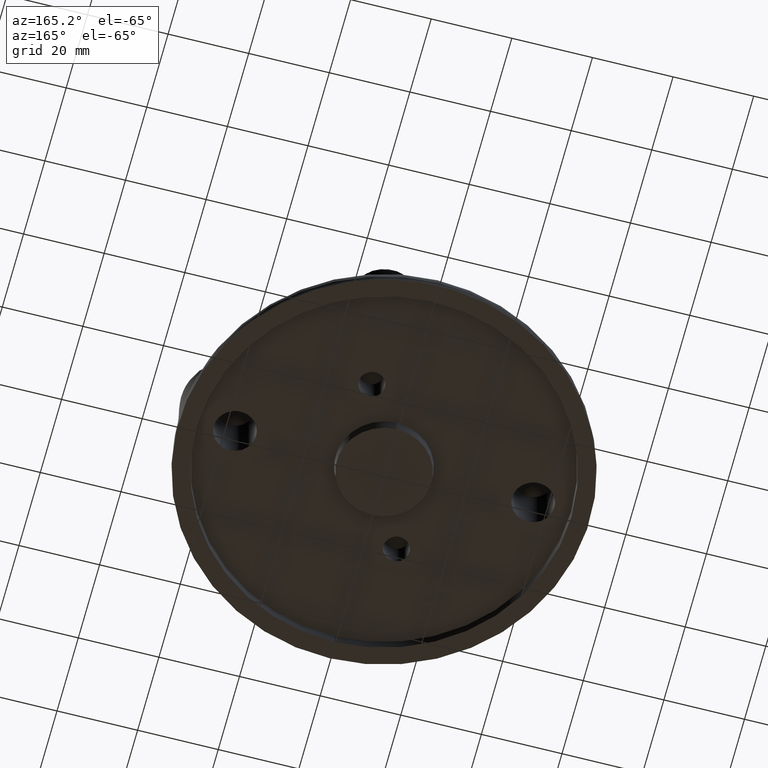
[diagram: clean part render]
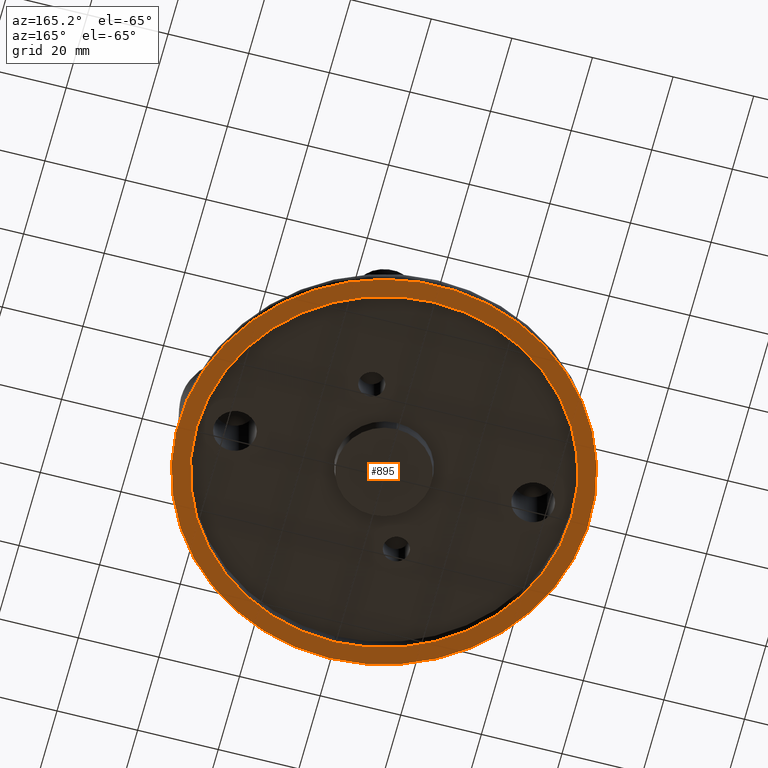
[diagram: same view with one face highlighted and labeled with its STEP entity id]
A machine part, auxiliary view. The second image highlights one B-rep face of the part: STEP entity #895.
In plain terms, the highlighted planar face has unit normal (0, 0, 1).
Its self-contained STEP definition (entity closure, byte-faithful):
#143=FACE_BOUND('',#212,.T.);
#146=FACE_OUTER_BOUND('',#211,.T.);
#211=EDGE_LOOP('',(#563));
#212=EDGE_LOOP('',(#564));
#278=CIRCLE('',#986,51.0059948985812);
#279=CIRCLE('',#987,46.5032577445684);
#352=VERTEX_POINT('',#1368);
#353=VERTEX_POINT('',#1370);
#433=EDGE_CURVE('',#352,#352,#278,.T.);
#434=EDGE_CURVE('',#353,#353,#279,.F.);
#563=ORIENTED_EDGE('',*,*,#433,.F.);
#564=ORIENTED_EDGE('',*,*,#434,.F.);
#818=PLANE('',#985);
#895=ADVANCED_FACE('',(#146,#143),#818,.F.);
#985=AXIS2_PLACEMENT_3D('',#1367,#1111,#1112);
#986=AXIS2_PLACEMENT_3D('',#1369,#1113,#1114);
#987=AXIS2_PLACEMENT_3D('',#1371,#1115,#1116);
#1111=DIRECTION('center_axis',(0.,0.,1.));
#1112=DIRECTION('ref_axis',(1.,0.,0.));
#1113=DIRECTION('center_axis',(0.,0.,1.));
#1114=DIRECTION('ref_axis',(0.,1.,-1.171453E-15));
#1115=DIRECTION('center_axis',(0.,0.,1.));
#1116=DIRECTION('ref_axis',(1.,0.,0.));
#1367=CARTESIAN_POINT('Origin',(-36.9,1.729065E-13,4.352074E-14));
#1368=CARTESIAN_POINT('',(0.,-51.0059948985812,4.35762537165374E-14));
#1369=CARTESIAN_POINT('Origin',(0.,7.04756674839387E-23,4.35762537165374E-14));
#1370=CARTESIAN_POINT('',(-5.69500657468101E-15,-46.5032577445684,4.32986979603811E-14));
#1371=CARTESIAN_POINT('Origin',(5.416568E-15,3.51436E-15,4.336809E-14));